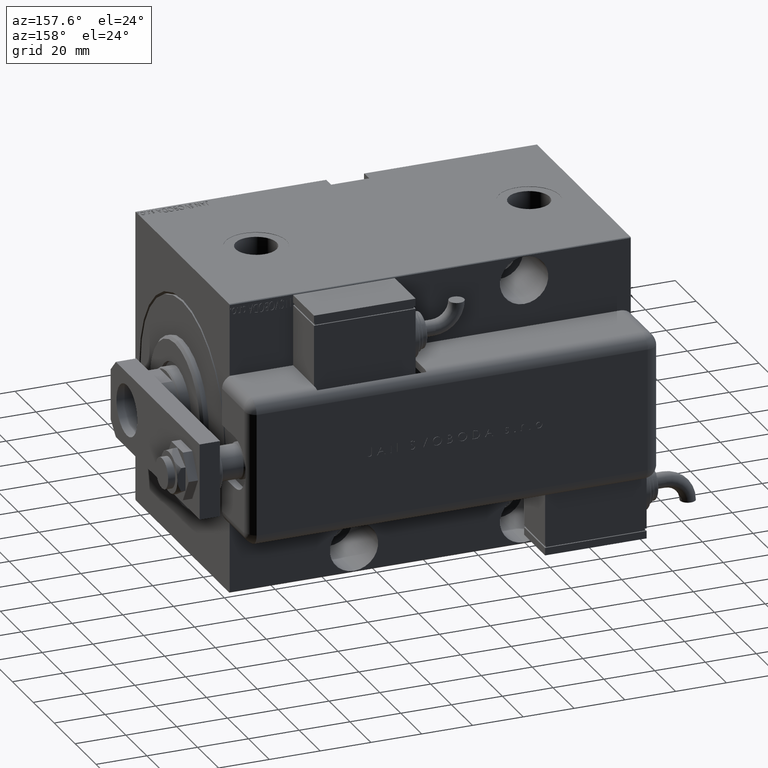
[diagram: clean part render]
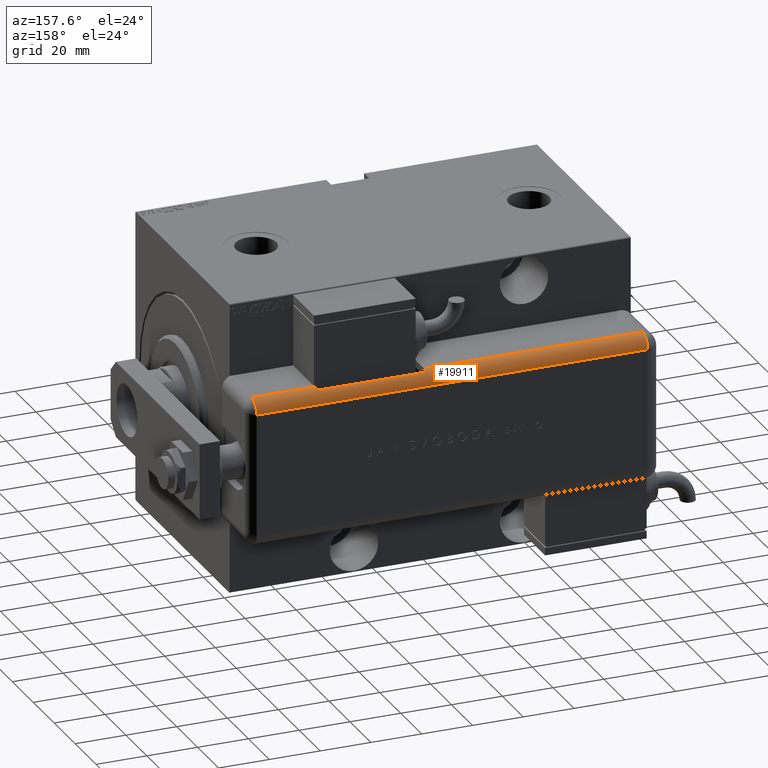
[diagram: same view with one face highlighted and labeled with its STEP entity id]
A machine part, auxiliary view. The second image highlights one B-rep face of the part: STEP entity #19911.
In plain terms, the highlighted cylindrical surface (edge-blend (fillet) strip) has radius 5 mm, axis along (-1, -0, -0).
Its self-contained STEP definition (entity closure, byte-faithful):
#300 = VERTEX_POINT ( 'NONE', #41252 ) ;
#689 = EDGE_CURVE ( 'NONE', #7284, #56248, #40814, .T. ) ;
#855 = DIRECTION ( 'NONE',  ( -1.000000000000000000, 0.000000000000000000, 0.000000000000000000 ) ) ;
#1468 = ORIENTED_EDGE ( 'NONE', *, *, #8318, .F. ) ;
#2280 = AXIS2_PLACEMENT_3D ( 'NONE', #51580, #46826, #855 ) ;
#2712 = DIRECTION ( 'NONE',  ( -0.000000000000000000, -0.000000000000000000, 1.000000000000000000 ) ) ;
#2966 = DIRECTION ( 'NONE',  ( -1.000000000000000000, -3.469446951953613400E-15, 0.000000000000000000 ) ) ;
#3138 = CIRCLE ( 'NONE', #52763, 5.000000000000000888 ) ;
#3424 = CIRCLE ( 'NONE', #7220, 5.000000000000000888 ) ;
#3609 = ORIENTED_EDGE ( 'NONE', *, *, #55616, .F. ) ;
#4130 = VECTOR ( 'NONE', #5650, 1000.000000000000000 ) ;
#4660 = DIRECTION ( 'NONE',  ( 0.000000000000000000, 0.000000000000000000, -1.000000000000000000 ) ) ;
#5650 = DIRECTION ( 'NONE',  ( -0.000000000000000000, -0.000000000000000000, 1.000000000000000000 ) ) ;
#5872 = VERTEX_POINT ( 'NONE', #18071 ) ;
#6303 = EDGE_LOOP ( 'NONE', ( #28294, #33879, #3609, #1468, #8800, #12943, #30909, #28881 ) ) ;
#6426 = DIRECTION ( 'NONE',  ( 0.000000000000000000, 0.000000000000000000, -1.000000000000000000 ) ) ;
#7220 = AXIS2_PLACEMENT_3D ( 'NONE', #52837, #39127, #2966 ) ;
#7284 = VERTEX_POINT ( 'NONE', #57091 ) ;
#7826 = EDGE_CURVE ( 'NONE', #17097, #7284, #3424, .T. ) ;
#8318 = EDGE_CURVE ( 'NONE', #5872, #19039, #51514, .T. ) ;
#8800 = ORIENTED_EDGE ( 'NONE', *, *, #38846, .F. ) ;
#12353 = DIRECTION ( 'NONE',  ( -0.000000000000000000, -0.000000000000000000, 1.000000000000000000 ) ) ;
#12597 = VECTOR ( 'NONE', #17875, 1000.000000000000000 ) ;
#12943 = ORIENTED_EDGE ( 'NONE', *, *, #55988, .F. ) ;
#15133 = VERTEX_POINT ( 'NONE', #17720 ) ;
#17097 = VERTEX_POINT ( 'NONE', #40882 ) ;
#17720 = CARTESIAN_POINT ( 'NONE',  ( -24.00000000000000000, 25.79999999999998295, 159.0000000000000000 ) ) ;
#17875 = DIRECTION ( 'NONE',  ( 0.000000000000000000, 0.000000000000000000, -1.000000000000000000 ) ) ;
#18071 = CARTESIAN_POINT ( 'NONE',  ( -28.99999999999999645, 20.79999999999998650, 159.0000000000000000 ) ) ;
#19039 = VERTEX_POINT ( 'NONE', #50117 ) ;
#19392 = CARTESIAN_POINT ( 'NONE',  ( -24.00000000000000000, 25.79999999999998295, 159.0000000000000000 ) ) ;
#19911 = ADVANCED_FACE ( 'NONE', ( #46254 ), #23559, .T. ) ;
#23559 = CYLINDRICAL_SURFACE ( 'NONE', #2280, 5.000000000000000888 ) ;
#25212 = CARTESIAN_POINT ( 'NONE',  ( -28.99999999999999645, 20.79999999999998650, 5.000000000000004441 ) ) ;
#26539 = LINE ( 'NONE', #48924, #12597 ) ;
#28294 = ORIENTED_EDGE ( 'NONE', *, *, #7826, .F. ) ;
#28881 = ORIENTED_EDGE ( 'NONE', *, *, #689, .F. ) ;
#30909 = ORIENTED_EDGE ( 'NONE', *, *, #35605, .T. ) ;
#31148 = CARTESIAN_POINT ( 'NONE',  ( -24.00000000000000000, 20.79999999999998650, 134.0000000000000000 ) ) ;
#32457 = EDGE_CURVE ( 'NONE', #42340, #17097, #26539, .T. ) ;
#33879 = ORIENTED_EDGE ( 'NONE', *, *, #32457, .F. ) ;
#34093 = CARTESIAN_POINT ( 'NONE',  ( -24.00000000000000000, 20.79999999999998650, 159.0000000000000000 ) ) ;
#35605 = EDGE_CURVE ( 'NONE', #300, #56248, #40282, .T. ) ;
#35627 = CIRCLE ( 'NONE', #40397, 5.000000000000000888 ) ;
#38846 = EDGE_CURVE ( 'NONE', #15133, #5872, #35627, .T. ) ;
#39127 = DIRECTION ( 'NONE',  ( -0.000000000000000000, -0.000000000000000000, 1.000000000000000000 ) ) ;
#39295 = AXIS2_PLACEMENT_3D ( 'NONE', #57444, #12353, #52674 ) ;
#40282 = CIRCLE ( 'NONE', #39295, 5.000000000000000888 ) ;
#40397 = AXIS2_PLACEMENT_3D ( 'NONE', #34093, #2712, #47508 ) ;
#40814 = LINE ( 'NONE', #50049, #48099 ) ;
#40882 = CARTESIAN_POINT ( 'NONE',  ( -28.48998886412872622, 22.99999999999998934, 91.00000000000001421 ) ) ;
#41252 = CARTESIAN_POINT ( 'NONE',  ( -24.00000000000000000, 25.79999999999998295, 5.000000000000004441 ) ) ;
#42340 = VERTEX_POINT ( 'NONE', #51403 ) ;
#44293 = DIRECTION ( 'NONE',  ( 0.000000000000000000, -0.000000000000000000, -1.000000000000000000 ) ) ;
#46254 = FACE_OUTER_BOUND ( 'NONE', #6303, .T. ) ;
#46411 = VECTOR ( 'NONE', #6426, 1000.000000000000000 ) ;
#46826 = DIRECTION ( 'NONE',  ( 0.000000000000000000, 0.000000000000000000, -1.000000000000000000 ) ) ;
#47442 = LINE ( 'NONE', #19392, #4130 ) ;
#47508 = DIRECTION ( 'NONE',  ( -1.000000000000000000, 0.000000000000000000, 0.000000000000000000 ) ) ;
#48099 = VECTOR ( 'NONE', #4660, 1000.000000000000000 ) ;
#48924 = CARTESIAN_POINT ( 'NONE',  ( -28.48998886412872622, 22.99999999999998934, 159.0000000000000000 ) ) ;
#50049 = CARTESIAN_POINT ( 'NONE',  ( -28.99999999999999645, 20.79999999999998650, 159.0000000000000000 ) ) ;
#50117 = CARTESIAN_POINT ( 'NONE',  ( -28.99999999999999645, 20.79999999999998650, 134.0000000000000000 ) ) ;
#51403 = CARTESIAN_POINT ( 'NONE',  ( -28.48998886412872622, 22.99999999999998934, 134.0000000000000000 ) ) ;
#51514 = LINE ( 'NONE', #56577, #46411 ) ;
#51580 = CARTESIAN_POINT ( 'NONE',  ( -24.00000000000000000, 20.79999999999998650, 159.0000000000000000 ) ) ;
#52674 = DIRECTION ( 'NONE',  ( -1.000000000000000000, 0.000000000000000000, 0.000000000000000000 ) ) ;
#52763 = AXIS2_PLACEMENT_3D ( 'NONE', #31148, #44293, #58577 ) ;
#52837 = CARTESIAN_POINT ( 'NONE',  ( -24.00000000000000000, 20.79999999999998650, 91.00000000000001421 ) ) ;
#55616 = EDGE_CURVE ( 'NONE', #19039, #42340, #3138, .T. ) ;
#55988 = EDGE_CURVE ( 'NONE', #300, #15133, #47442, .T. ) ;
#56248 = VERTEX_POINT ( 'NONE', #25212 ) ;
#56577 = CARTESIAN_POINT ( 'NONE',  ( -28.99999999999999645, 20.79999999999998650, 159.0000000000000000 ) ) ;
#57091 = CARTESIAN_POINT ( 'NONE',  ( -28.99999999999999645, 20.79999999999998650, 91.00000000000001421 ) ) ;
#57444 = CARTESIAN_POINT ( 'NONE',  ( -24.00000000000000000, 20.79999999999998650, 5.000000000000004441 ) ) ;
#58577 = DIRECTION ( 'NONE',  ( 1.000000000000000000, 0.000000000000000000, 0.000000000000000000 ) ) ;